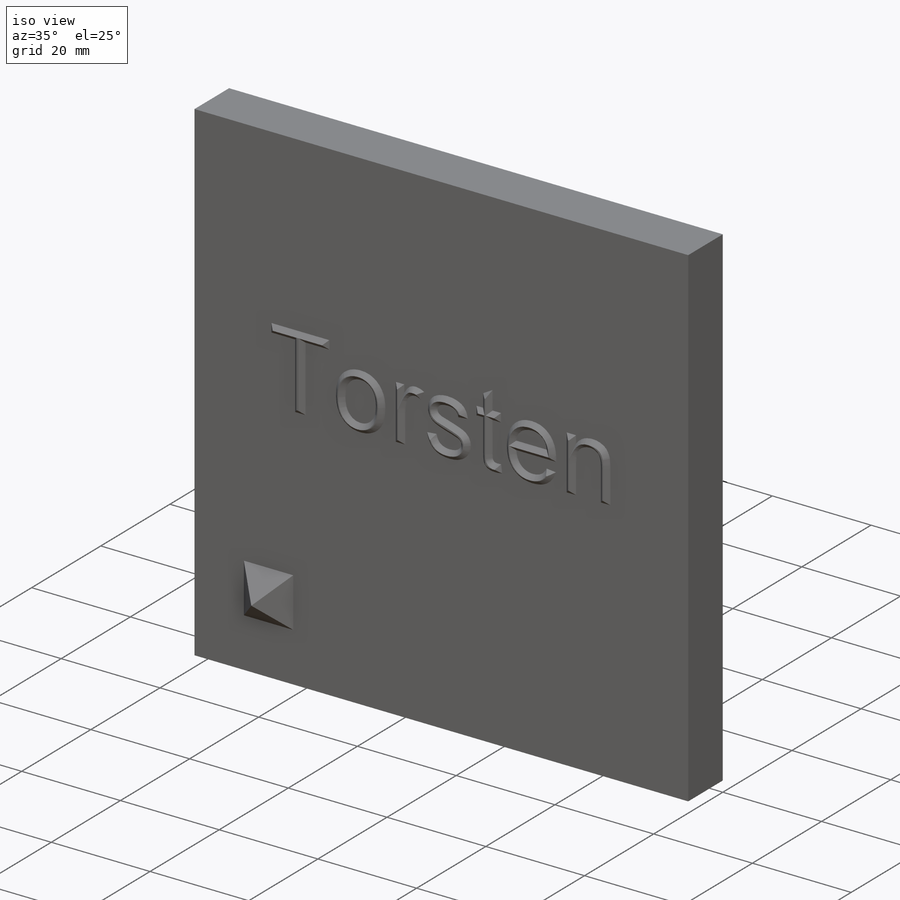
[diagram: iso view]
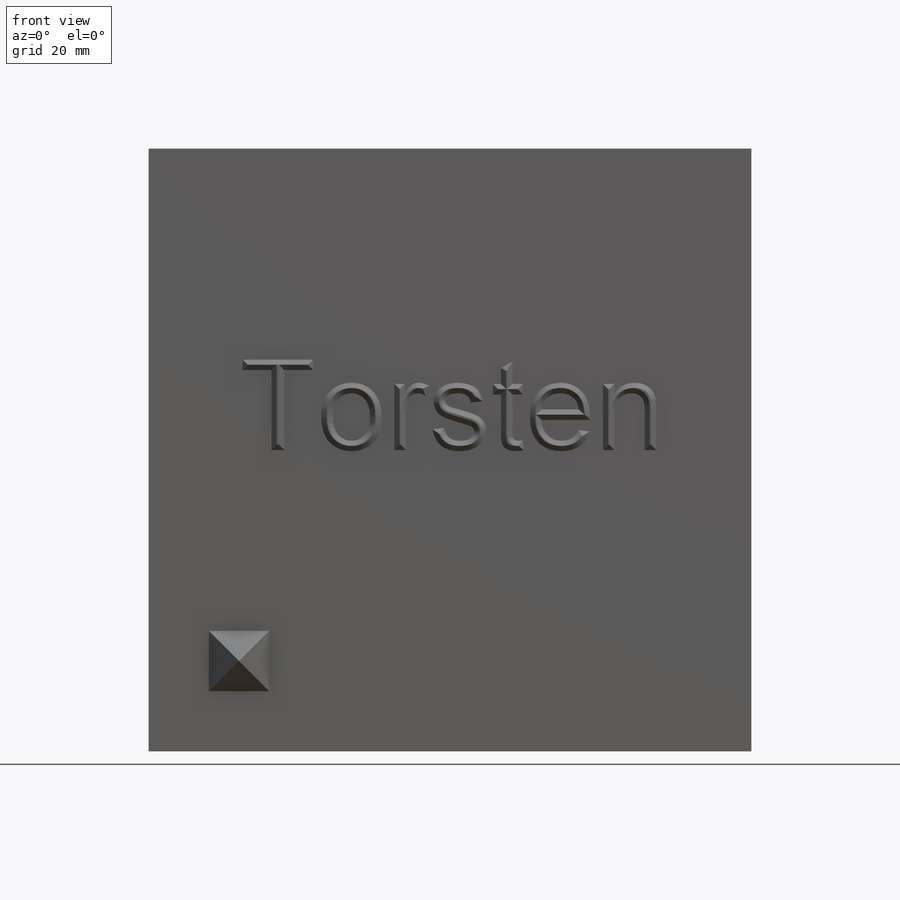
[diagram: front view]
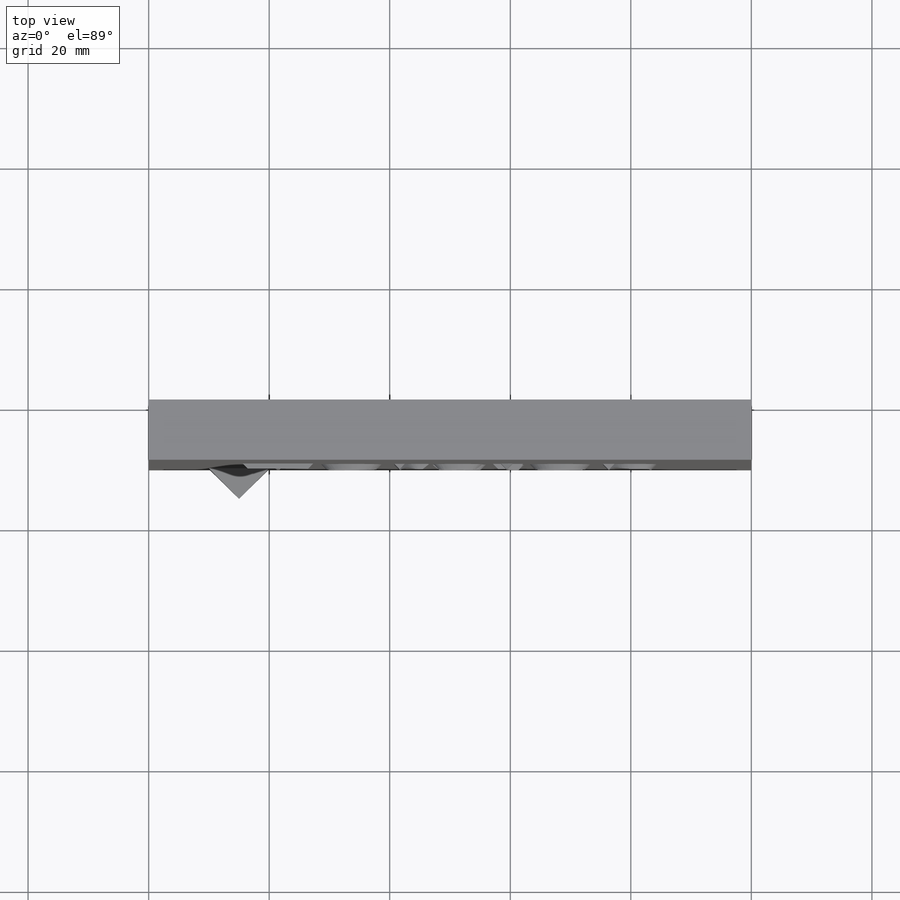
[diagram: top view]
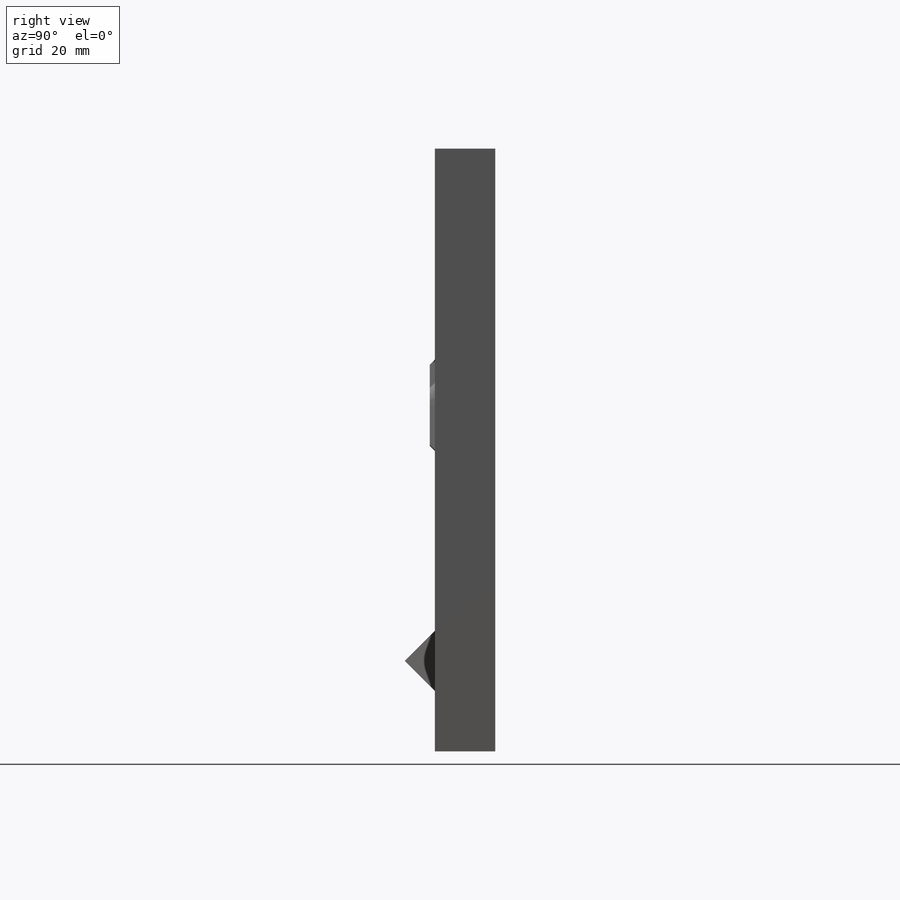
[diagram: right view]
SOLIDWORKS PART (.sldprt)
format: sldprt  version: not decoded by parser v0  size: 459,264 bytes
history: native  units: mm
features: sketch x5, extrude x4, plane x3, material x1 (+9 scaffold rows collapsed)
feature tree (22):
  scaffold x9  (default folders/planes/origin — collapsed)
  material  "Material <nicht festgelegt>"
  plane  "Ebene vorne"
  plane  "Ebene oben"
  plane  "Ebene rechts"
  sketch  "Skizze1"  dims[c1.D1=~67.591793mm c1.D2=~95.725717mm c2.D1=100.0mm c2.D2=100.0mm]
  extrude  "Aufsatz-Linear austragen1"  Depth=10mm
  sketch  "Skizze2"  dims[c1.D1=~16.351415mm c1.D2=~15.052495mm c2.D1=10.0mm c2.D2=10.0mm c2.D3=10.0mm c2.D4=10.0mm]
  extrude  "Aufsatz-Linear austragen2"  Depth=20mm
  sketch  "Skizze3"  dims[D1=15.0mm D2=15.0mm D3=50.0mm]
  extrude  "Aufsatz-Linear austragen4"  Depth=0.865mm
  sketch  "Skizze4"  dims[D1=15.0mm D2=15.0mm D3=30.0mm]
  extrude  "Aufsatz-Linear austragen7"  Depth=0.3mm
  sketch  "Skizze5"  dims[D2=~0.000769mm D1=0.865mm]
decode coverage: 9 of 9 modeling features carry decoded parameters
note: ~ marks probable driven/reference dimensions
note: suppression state not decoded; provenance and decode notes live in map.json
